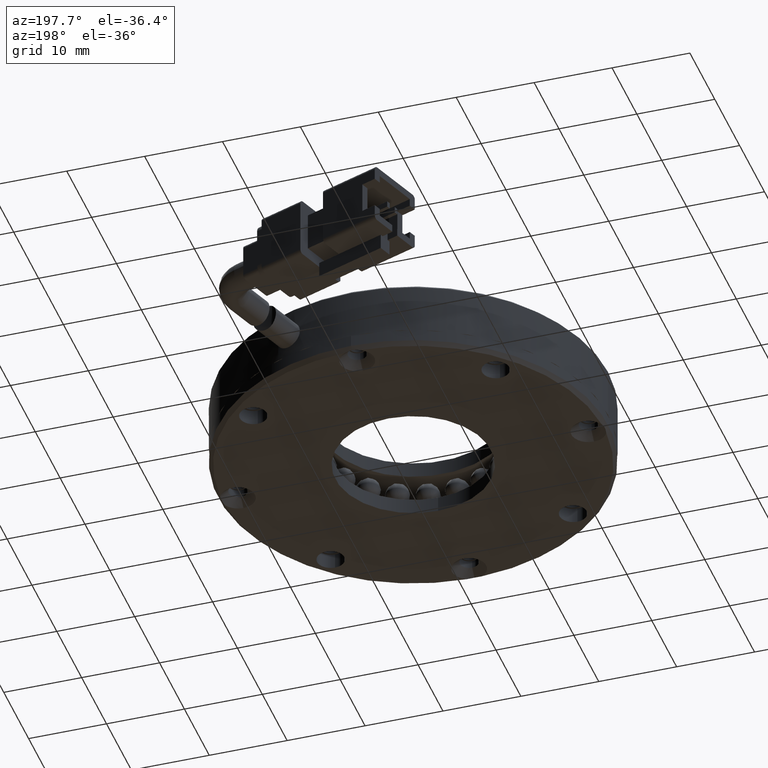
[diagram: clean part render]
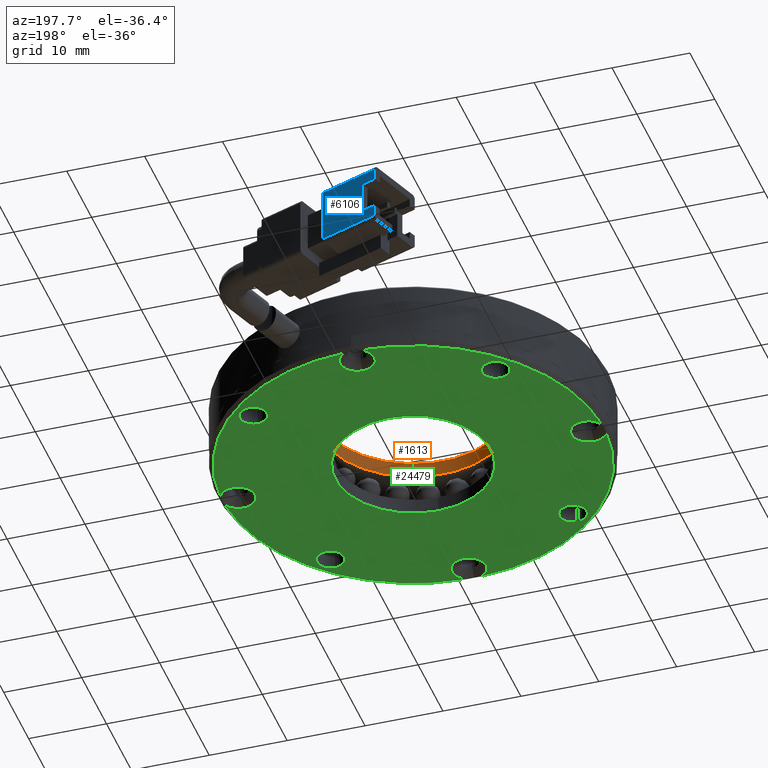
[diagram: same view with three faces highlighted in distinct colors, each labeled with its STEP entity id]
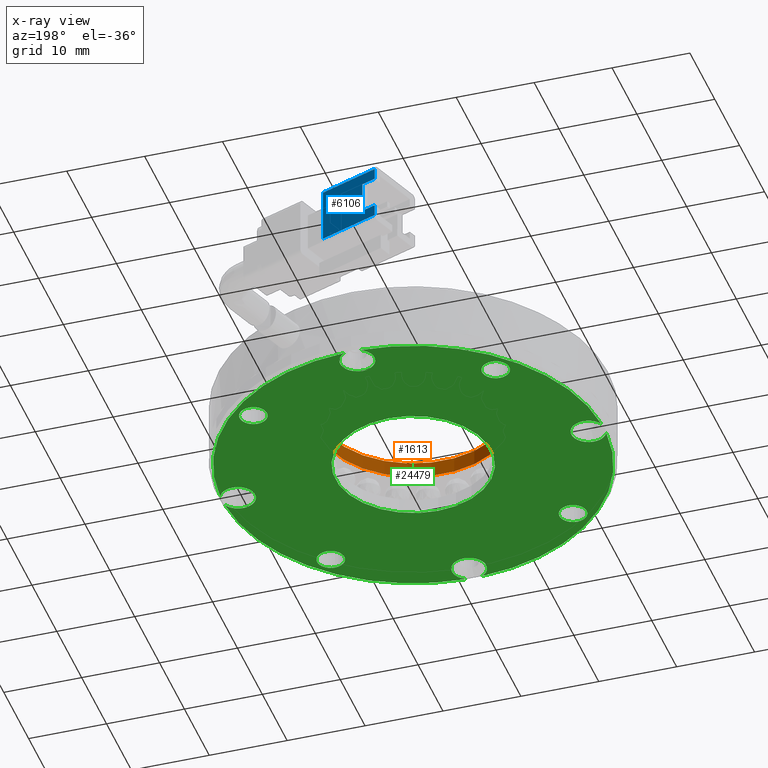
[diagram: x-ray of the same camera — body ghosted, the three highlighted faces saturated]
A machine part, auxiliary view with three faces highlighted in distinct colors.
The next image is the same camera in x-ray (body ghosted, the three faces saturated) — at least one of them is partly hidden behind the body in this view.
Their STEP definitions:

[orange] entity #1613 — the highlighted cylindrical surface (partial cylindrical patch) has radius 12 mm, axis along (-0, -0, -1).
#1157 = CARTESIAN_POINT ( 'NONE',  ( -133.0083944312393100, 6.460725025466879300, 3.500000000000063100 ) ) ;
#1480 = CARTESIAN_POINT ( 'NONE',  ( -121.0083944312392800, 6.460725025466879300, -56.72319322623545200 ) ) ;
#1613 = ADVANCED_FACE ( 'NONE', ( #24805 ), #12339, .F. ) ;
#4353 = CARTESIAN_POINT ( 'NONE',  ( -121.0083944312392800, 6.460725025466879300, 1.500000000000061300 ) ) ;
#4560 = CARTESIAN_POINT ( 'NONE',  ( -109.0083944312392800, 6.460725025466881100, -56.72319322623545200 ) ) ;
#5575 = EDGE_LOOP ( 'NONE', ( #14041, #20303, #14171, #24321 ) ) ;
#6343 = DIRECTION ( 'NONE',  ( -1.000000000000000000, 0.0000000000000000000, 0.0000000000000000000 ) ) ;
#6349 = EDGE_CURVE ( 'NONE', #25215, #21976, #8812, .T. ) ;
#8645 = DIRECTION ( 'NONE',  ( 0.0000000000000000000, 0.0000000000000000000, 1.000000000000000000 ) ) ;
#8812 = CIRCLE ( 'NONE', #24765, 12.00000000000001100 ) ;
#9398 = AXIS2_PLACEMENT_3D ( 'NONE', #4353, #18249, #6343 ) ;
#10208 = LINE ( 'NONE', #19374, #25449 ) ;
#11106 = AXIS2_PLACEMENT_3D ( 'NONE', #1480, #13476, #25509 ) ;
#11929 = LINE ( 'NONE', #4560, #19073 ) ;
#12339 = CYLINDRICAL_SURFACE ( 'NONE', #11106, 12.00000000000001100 ) ;
#13296 = CARTESIAN_POINT ( 'NONE',  ( -109.0083944312392800, 6.460725025466881100, 1.500000000000061300 ) ) ;
#13476 = DIRECTION ( 'NONE',  ( -0.0000000000000000000, -0.0000000000000000000, -1.000000000000000000 ) ) ;
#13872 = EDGE_CURVE ( 'NONE', #25215, #15440, #10208, .T. ) ;
#14041 = ORIENTED_EDGE ( 'NONE', *, *, #6349, .T. ) ;
#14171 = ORIENTED_EDGE ( 'NONE', *, *, #18182, .F. ) ;
#14516 = VERTEX_POINT ( 'NONE', #13296 ) ;
#15440 = VERTEX_POINT ( 'NONE', #25597 ) ;
#15568 = CIRCLE ( 'NONE', #9398, 12.00000000000001100 ) ;
#18182 = EDGE_CURVE ( 'NONE', #15440, #14516, #15568, .T. ) ;
#18249 = DIRECTION ( 'NONE',  ( 0.0000000000000000000, 0.0000000000000000000, 1.000000000000000000 ) ) ;
#19073 = VECTOR ( 'NONE', #24368, 1000.000000000000000 ) ;
#19374 = CARTESIAN_POINT ( 'NONE',  ( -133.0083944312393100, 6.460725025466879300, -56.72319322623545200 ) ) ;
#20303 = ORIENTED_EDGE ( 'NONE', *, *, #25693, .T. ) ;
#20573 = CARTESIAN_POINT ( 'NONE',  ( -121.0083944312392800, 6.460725025466879300, 3.500000000000063100 ) ) ;
#21623 = CARTESIAN_POINT ( 'NONE',  ( -109.0083944312392800, 6.460725025466881100, 3.500000000000063100 ) ) ;
#21976 = VERTEX_POINT ( 'NONE', #21623 ) ;
#22598 = DIRECTION ( 'NONE',  ( -1.000000000000000000, 0.0000000000000000000, 0.0000000000000000000 ) ) ;
#23124 = DIRECTION ( 'NONE',  ( -0.0000000000000000000, -0.0000000000000000000, -1.000000000000000000 ) ) ;
#24321 = ORIENTED_EDGE ( 'NONE', *, *, #13872, .F. ) ;
#24368 = DIRECTION ( 'NONE',  ( -0.0000000000000000000, -0.0000000000000000000, -1.000000000000000000 ) ) ;
#24765 = AXIS2_PLACEMENT_3D ( 'NONE', #20573, #8645, #22598 ) ;
#24805 = FACE_OUTER_BOUND ( 'NONE', #5575, .T. ) ;
#25215 = VERTEX_POINT ( 'NONE', #1157 ) ;
#25449 = VECTOR ( 'NONE', #23124, 1000.000000000000000 ) ;
#25509 = DIRECTION ( 'NONE',  ( -1.000000000000000000, 0.0000000000000000000, 0.0000000000000000000 ) ) ;
#25597 = CARTESIAN_POINT ( 'NONE',  ( -133.0083944312393100, 6.460725025466879300, 1.500000000000061300 ) ) ;
#25693 = EDGE_CURVE ( 'NONE', #21976, #14516, #11929, .T. ) ;

[blue] entity #6106 — the highlighted planar face has unit normal (-0.342, -0.9397, 0).
#195 = LINE ( 'NONE', #15658, #25436 ) ;
#455 = LINE ( 'NONE', #1461, #10446 ) ;
#683 = EDGE_CURVE ( 'NONE', #3971, #8037, #11608, .T. ) ;
#1387 = VECTOR ( 'NONE', #12892, 999.9999999999998900 ) ;
#1461 = CARTESIAN_POINT ( 'NONE',  ( -131.5561219847171800, 54.96189835004862800, -3.999999999999916100 ) ) ;
#1555 = EDGE_CURVE ( 'NONE', #8037, #18004, #195, .T. ) ;
#2028 = CARTESIAN_POINT ( 'NONE',  ( -131.5561219847171800, 54.96189835004862800, -2.499999999999922300 ) ) ;
#3065 = VERTEX_POINT ( 'NONE', #13480 ) ;
#3196 = CARTESIAN_POINT ( 'NONE',  ( -131.5561219847171800, 54.96189835004862800, -3.999999999999916100 ) ) ;
#3382 = ORIENTED_EDGE ( 'NONE', *, *, #20912, .F. ) ;
#3692 = CARTESIAN_POINT ( 'NONE',  ( -131.5561219847171800, 54.96189835004862800, -3.999999999999916100 ) ) ;
#3971 = VERTEX_POINT ( 'NONE', #24943 ) ;
#5095 = CARTESIAN_POINT ( 'NONE',  ( -131.5561219847171800, 54.96189835004862800, -3.999999999999916100 ) ) ;
#5497 = DIRECTION ( 'NONE',  ( 2.333578247978733300E-016, -2.116735384756109300E-018, 1.000000000000000000 ) ) ;
#5588 = CARTESIAN_POINT ( 'NONE',  ( -131.5561219847171800, 54.96189835004862800, 1.500000000000083500 ) ) ;
#5719 = DIRECTION ( 'NONE',  ( -1.566359828355322200E-016, -1.057463294585659500E-016, -1.000000000000000000 ) ) ;
#5880 = EDGE_LOOP ( 'NONE', ( #17138, #18101, #8187, #19027, #3382, #25486, #10418, #7357 ) ) ;
#6106 = ADVANCED_FACE ( 'NONE', ( #20405 ), #11511, .F. ) ;
#6341 = VECTOR ( 'NONE', #8044, 999.9999999999998900 ) ;
#6834 = CARTESIAN_POINT ( 'NONE',  ( -129.7531995496019600, 54.30568824897596200, 1.500000000000083000 ) ) ;
#7069 = EDGE_CURVE ( 'NONE', #12733, #15643, #9530, .T. ) ;
#7181 = EDGE_CURVE ( 'NONE', #20877, #3971, #19807, .T. ) ;
#7357 = ORIENTED_EDGE ( 'NONE', *, *, #1555, .F. ) ;
#8037 = VERTEX_POINT ( 'NONE', #12230 ) ;
#8044 = DIRECTION ( 'NONE',  ( -0.9396926207859083200, 0.3420201433256692700, 1.110223024625156500E-016 ) ) ;
#8187 = ORIENTED_EDGE ( 'NONE', *, *, #15898, .F. ) ;
#8548 = LINE ( 'NONE', #5095, #23809 ) ;
#8896 = VECTOR ( 'NONE', #23395, 1000.000000000000000 ) ;
#9530 = LINE ( 'NONE', #25393, #8896 ) ;
#9553 = DIRECTION ( 'NONE',  ( 0.9396926207859083200, -0.3420201433256692700, -1.110223024625156500E-016 ) ) ;
#9726 = CARTESIAN_POINT ( 'NONE',  ( -129.7531995496019900, 54.30568824897596200, -3.999999999999917000 ) ) ;
#10418 = ORIENTED_EDGE ( 'NONE', *, *, #25203, .F. ) ;
#10446 = VECTOR ( 'NONE', #5497, 1000.000000000000000 ) ;
#10453 = CARTESIAN_POINT ( 'NONE',  ( -124.0385810184299200, 52.22573720344327300, 3.000000000000072800 ) ) ;
#10904 = CARTESIAN_POINT ( 'NONE',  ( -131.5561219847171800, 54.96189835004864900, 3.000000000000065300 ) ) ;
#11511 = PLANE ( 'NONE',  #20439 ) ;
#11608 = LINE ( 'NONE', #2028, #6341 ) ;
#12151 = CARTESIAN_POINT ( 'NONE',  ( -131.5561219847171800, 54.96189835004862100, 1.500000000000082600 ) ) ;
#12230 = CARTESIAN_POINT ( 'NONE',  ( -131.5561219847171800, 54.96189835004862800, -2.499999999999922300 ) ) ;
#12375 = LINE ( 'NONE', #5588, #15157 ) ;
#12733 = VERTEX_POINT ( 'NONE', #17503 ) ;
#12892 = DIRECTION ( 'NONE',  ( -0.9396926207859083200, 0.3420201433256692700, 2.200085921048892400E-016 ) ) ;
#13480 = CARTESIAN_POINT ( 'NONE',  ( -131.5561219847171800, 54.96189835004863500, 3.000000000000074600 ) ) ;
#14490 = VECTOR ( 'NONE', #21672, 1000.000000000000000 ) ;
#14694 = VERTEX_POINT ( 'NONE', #12151 ) ;
#14962 = DIRECTION ( 'NONE',  ( 0.9396926207859083200, -0.3420201433256692700, -1.110223024625156500E-016 ) ) ;
#15157 = VECTOR ( 'NONE', #9553, 999.9999999999998900 ) ;
#15643 = VERTEX_POINT ( 'NONE', #10453 ) ;
#15658 = CARTESIAN_POINT ( 'NONE',  ( -131.5561219847171800, 54.96189835004862800, -3.999999999999916100 ) ) ;
#15898 = EDGE_CURVE ( 'NONE', #14694, #20877, #12375, .T. ) ;
#16416 = EDGE_CURVE ( 'NONE', #14694, #3065, #455, .T. ) ;
#17138 = ORIENTED_EDGE ( 'NONE', *, *, #683, .F. ) ;
#17252 = LINE ( 'NONE', #10904, #1387 ) ;
#17503 = CARTESIAN_POINT ( 'NONE',  ( -124.0385810184299100, 52.22573720344327300, -3.999999999999917800 ) ) ;
#17602 = DIRECTION ( 'NONE',  ( -0.3420201433256692700, -0.9396926207859083200, 1.529417067667757400E-016 ) ) ;
#18004 = VERTEX_POINT ( 'NONE', #3196 ) ;
#18101 = ORIENTED_EDGE ( 'NONE', *, *, #7181, .F. ) ;
#19027 = ORIENTED_EDGE ( 'NONE', *, *, #16416, .T. ) ;
#19807 = LINE ( 'NONE', #9726, #14490 ) ;
#20405 = FACE_OUTER_BOUND ( 'NONE', #5880, .T. ) ;
#20439 = AXIS2_PLACEMENT_3D ( 'NONE', #3692, #17602, #5719 ) ;
#20877 = VERTEX_POINT ( 'NONE', #6834 ) ;
#20912 = EDGE_CURVE ( 'NONE', #15643, #3065, #17252, .T. ) ;
#21672 = DIRECTION ( 'NONE',  ( -1.566359828355322200E-016, -1.057463294585659500E-016, -1.000000000000000000 ) ) ;
#23395 = DIRECTION ( 'NONE',  ( 2.333578247978733300E-016, -2.116735384756109300E-018, 1.000000000000000000 ) ) ;
#23411 = DIRECTION ( 'NONE',  ( -1.566359828355322200E-016, -1.057463294585659500E-016, -1.000000000000000000 ) ) ;
#23809 = VECTOR ( 'NONE', #14962, 999.9999999999998900 ) ;
#24943 = CARTESIAN_POINT ( 'NONE',  ( -129.7531995496019900, 54.30568824897596200, -2.499999999999921400 ) ) ;
#25203 = EDGE_CURVE ( 'NONE', #18004, #12733, #8548, .T. ) ;
#25393 = CARTESIAN_POINT ( 'NONE',  ( -124.0385810184299100, 52.22573720344325900, -3.999999999999934300 ) ) ;
#25436 = VECTOR ( 'NONE', #23411, 1000.000000000000000 ) ;
#25486 = ORIENTED_EDGE ( 'NONE', *, *, #7069, .F. ) ;

[green] entity #24479 — the highlighted planar face has unit normal (-0, -0, -1).
#89 = EDGE_LOOP ( 'NONE', ( #14584, #22411 ) ) ;
#153 = AXIS2_PLACEMENT_3D ( 'NONE', #4779, #18671, #6770 ) ;
#306 = CIRCLE ( 'NONE', #19694, 2.200000000016189000 ) ;
#357 = ORIENTED_EDGE ( 'NONE', *, *, #1727, .T. ) ;
#451 = CARTESIAN_POINT ( 'NONE',  ( -105.4520452451353800, 22.01707421156880100, -5.499999999999942300 ) ) ;
#476 = DIRECTION ( 'NONE',  ( 0.0000000000000000000, 1.000000000000000000, 0.0000000000000000000 ) ) ;
#502 = DIRECTION ( 'NONE',  ( 0.0000000000000000000, -1.000000000000000000, 0.0000000000000000000 ) ) ;
#611 = CARTESIAN_POINT ( 'NONE',  ( -145.4897277645734200, 5.504525139319636800, -5.500000000003591800 ) ) ;
#814 = CIRCLE ( 'NONE', #9850, 1.749999999999994700 ) ;
#857 = DIRECTION ( 'NONE',  ( 0.0000000000000000000, 1.000000000000000000, 0.0000000000000000000 ) ) ;
#961 = VERTEX_POINT ( 'NONE', #4348 ) ;
#980 = CARTESIAN_POINT ( 'NONE',  ( -121.0083944312394000, -3.539274974535270500, -5.499999999999940500 ) ) ;
#986 = CARTESIAN_POINT ( 'NONE',  ( -145.4897277645734200, 7.416924911609513900, -5.500000000003594500 ) ) ;
#1176 = CARTESIAN_POINT ( 'NONE',  ( -121.0083944312394800, 28.96072502546472200, -5.500000000009490200 ) ) ;
#1281 = CARTESIAN_POINT ( 'NONE',  ( -121.0083944312394000, 6.460725025464729900, -5.499999999999940500 ) ) ;
#1296 = VERTEX_POINT ( 'NONE', #19732 ) ;
#1361 = DIRECTION ( 'NONE',  ( -1.278084676573917700E-047, 1.000000000000000000, 1.633500440493055000E-094 ) ) ;
#1411 = CARTESIAN_POINT ( 'NONE',  ( -121.0083944312391500, -16.03927497453527100, -5.500000000066333600 ) ) ;
#1727 = EDGE_CURVE ( 'NONE', #18316, #961, #19827, .T. ) ;
#1728 = EDGE_CURVE ( 'NONE', #7697, #23465, #4587, .T. ) ;
#1831 = DIRECTION ( 'NONE',  ( 1.278084676573917400E-047, -0.0000000000000000000, 1.000000000000000000 ) ) ;
#1919 = CARTESIAN_POINT ( 'NONE',  ( -121.0083944312394000, 6.460725025464729900, -5.499999999999940500 ) ) ;
#2195 = EDGE_CURVE ( 'NONE', #1296, #24520, #6107, .T. ) ;
#2442 = DIRECTION ( 'NONE',  ( 1.278084676573917400E-047, -0.0000000000000000000, 1.000000000000000000 ) ) ;
#2467 = DIRECTION ( 'NONE',  ( 0.0000000000000000000, 1.000000000000000000, 0.0000000000000000000 ) ) ;
#2523 = CIRCLE ( 'NONE', #20201, 2.199999999938889900 ) ;
#2755 = CIRCLE ( 'NONE', #24262, 2.199999999979808300 ) ;
#2846 = EDGE_CURVE ( 'NONE', #17264, #15101, #21369, .T. ) ;
#2960 = ORIENTED_EDGE ( 'NONE', *, *, #16846, .T. ) ;
#2964 = CIRCLE ( 'NONE', #6216, 24.49999999999999300 ) ;
#3000 = AXIS2_PLACEMENT_3D ( 'NONE', #15495, #15299, #15214 ) ;
#3017 = EDGE_CURVE ( 'NONE', #3316, #5191, #3261, .T. ) ;
#3157 = DIRECTION ( 'NONE',  ( -6.308085367363610600E-015, 1.000000000000000000, 0.0000000000000000000 ) ) ;
#3261 = CIRCLE ( 'NONE', #3000, 2.200000000016189000 ) ;
#3269 = CARTESIAN_POINT ( 'NONE',  ( -105.4520452451351500, -7.345624160639128600, -5.499999999999942300 ) ) ;
#3306 = CIRCLE ( 'NONE', #25010, 2.200000000016348400 ) ;
#3316 = VERTEX_POINT ( 'NONE', #24189 ) ;
#3406 = DIRECTION ( 'NONE',  ( 0.0000000000000000000, 1.000000000000000000, 0.0000000000000000000 ) ) ;
#3450 = CARTESIAN_POINT ( 'NONE',  ( -105.4520452451353800, 20.26707421156880800, -5.499999999999942300 ) ) ;
#3460 = CARTESIAN_POINT ( 'NONE',  ( -136.5647436173433100, -7.345624160639461700, -5.499999999999942300 ) ) ;
#3621 = DIRECTION ( 'NONE',  ( -1.278084676573917400E-047, -0.0000000000000000000, -1.000000000000000000 ) ) ;
#3960 = VERTEX_POINT ( 'NONE', #8930 ) ;
#3979 = FACE_BOUND ( 'NONE', #17879, .T. ) ;
#4119 = DIRECTION ( 'NONE',  ( 1.278084676573917400E-047, -0.0000000000000000000, 1.000000000000000000 ) ) ;
#4337 = DIRECTION ( 'NONE',  ( -1.278084676573917400E-047, -0.0000000000000000000, -1.000000000000000000 ) ) ;
#4348 = CARTESIAN_POINT ( 'NONE',  ( -136.5647436173435400, 23.76707421156868700, -5.499999999999942300 ) ) ;
#4506 = EDGE_CURVE ( 'NONE', #5220, #6843, #11909, .T. ) ;
#4587 = CIRCLE ( 'NONE', #20484, 1.749999999999992900 ) ;
#4613 = DIRECTION ( 'NONE',  ( 1.278084676573917400E-047, -0.0000000000000000000, 1.000000000000000000 ) ) ;
#4701 = EDGE_CURVE ( 'NONE', #9667, #11033, #10634, .T. ) ;
#4728 = EDGE_CURVE ( 'NONE', #23790, #9667, #8135, .T. ) ;
#4779 = CARTESIAN_POINT ( 'NONE',  ( -143.5083944312394000, 6.460725025464570100, -5.500000000009490200 ) ) ;
#4881 = EDGE_CURVE ( 'NONE', #9899, #3960, #2523, .T. ) ;
#5023 = EDGE_CURVE ( 'NONE', #5191, #5220, #306, .T. ) ;
#5163 = CIRCLE ( 'NONE', #13932, 2.199999999979808300 ) ;
#5168 = ORIENTED_EDGE ( 'NONE', *, *, #2846, .T. ) ;
#5191 = VERTEX_POINT ( 'NONE', #14133 ) ;
#5220 = VERTEX_POINT ( 'NONE', #20253 ) ;
#5396 = AXIS2_PLACEMENT_3D ( 'NONE', #8767, #22716, #10760 ) ;
#5829 = CARTESIAN_POINT ( 'NONE',  ( -121.0083944312394000, 6.460725025464729900, -5.499999999999936900 ) ) ;
#6107 = CIRCLE ( 'NONE', #25151, 1.749999999999994700 ) ;
#6216 = AXIS2_PLACEMENT_3D ( 'NONE', #5829, #19729, #7822 ) ;
#6462 = CIRCLE ( 'NONE', #7331, 10.00000000000000000 ) ;
#6473 = ORIENTED_EDGE ( 'NONE', *, *, #10129, .T. ) ;
#6551 = CARTESIAN_POINT ( 'NONE',  ( -96.52706109790560200, 7.416924911610252900, -5.500000000003801400 ) ) ;
#6770 = DIRECTION ( 'NONE',  ( 0.0000000000000000000, 1.000000000000000000, 0.0000000000000000000 ) ) ;
#6843 = VERTEX_POINT ( 'NONE', #14525 ) ;
#7042 = CARTESIAN_POINT ( 'NONE',  ( -136.5647436173435400, 22.01707421156869400, -5.499999999999942300 ) ) ;
#7331 = AXIS2_PLACEMENT_3D ( 'NONE', #11572, #25516, #13584 ) ;
#7531 = ORIENTED_EDGE ( 'NONE', *, *, #18718, .T. ) ;
#7540 = CARTESIAN_POINT ( 'NONE',  ( -121.0083944312394000, 16.46072502546472900, -5.499999999999940500 ) ) ;
#7697 = VERTEX_POINT ( 'NONE', #3269 ) ;
#7733 = DIRECTION ( 'NONE',  ( 1.278084676573917400E-047, -0.0000000000000000000, 1.000000000000000000 ) ) ;
#7822 = DIRECTION ( 'NONE',  ( 1.132880637372609100E-015, -1.000000000000000000, 0.0000000000000000000 ) ) ;
#8041 = EDGE_CURVE ( 'NONE', #20204, #15672, #19394, .T. ) ;
#8135 = CIRCLE ( 'NONE', #153, 2.200000000016348400 ) ;
#8498 = EDGE_CURVE ( 'NONE', #15672, #3316, #24962, .T. ) ;
#8626 = VERTEX_POINT ( 'NONE', #611 ) ;
#8767 = CARTESIAN_POINT ( 'NONE',  ( -136.5647436173433100, -9.095624160639456300, -5.499999999999942300 ) ) ;
#8816 = EDGE_LOOP ( 'NONE', ( #14263, #22085 ) ) ;
#8930 = CARTESIAN_POINT ( 'NONE',  ( -121.0083944312394800, 26.76072502552582900, -5.500000000009490200 ) ) ;
#9011 = DIRECTION ( 'NONE',  ( 0.0000000000000000000, 1.000000000000000000, 0.0000000000000000000 ) ) ;
#9253 = FACE_BOUND ( 'NONE', #18408, .T. ) ;
#9279 = PLANE ( 'NONE',  #24932 ) ;
#9356 = ORIENTED_EDGE ( 'NONE', *, *, #20376, .T. ) ;
#9667 = VERTEX_POINT ( 'NONE', #24724 ) ;
#9850 = AXIS2_PLACEMENT_3D ( 'NONE', #7042, #20964, #9011 ) ;
#9899 = VERTEX_POINT ( 'NONE', #25838 ) ;
#9924 = ORIENTED_EDGE ( 'NONE', *, *, #14266, .T. ) ;
#10129 = EDGE_CURVE ( 'NONE', #15101, #17264, #6462, .T. ) ;
#10406 = EDGE_CURVE ( 'NONE', #8626, #23790, #3306, .T. ) ;
#10502 = EDGE_CURVE ( 'NONE', #961, #18316, #814, .T. ) ;
#10634 = CIRCLE ( 'NONE', #15327, 2.200000000016348400 ) ;
#10670 = EDGE_CURVE ( 'NONE', #21979, #8626, #2964, .T. ) ;
#10760 = DIRECTION ( 'NONE',  ( 0.0000000000000000000, 1.000000000000000000, 0.0000000000000000000 ) ) ;
#10846 = DIRECTION ( 'NONE',  ( 1.278084676573917400E-047, -0.0000000000000000000, 1.000000000000000000 ) ) ;
#11005 = CARTESIAN_POINT ( 'NONE',  ( -105.4520452451351500, -9.095624160639122400, -5.499999999999942300 ) ) ;
#11033 = VERTEX_POINT ( 'NONE', #986 ) ;
#11180 = AXIS2_PLACEMENT_3D ( 'NONE', #15545, #3621, #17527 ) ;
#11285 = AXIS2_PLACEMENT_3D ( 'NONE', #16240, #4337, #18237 ) ;
#11572 = CARTESIAN_POINT ( 'NONE',  ( -121.0083944312394000, 6.460725025464729900, -5.499999999999940500 ) ) ;
#11618 = ORIENTED_EDGE ( 'NONE', *, *, #10670, .T. ) ;
#11693 = AXIS2_PLACEMENT_3D ( 'NONE', #11005, #24939, #13010 ) ;
#11811 = DIRECTION ( 'NONE',  ( -1.278084676573917400E-047, -0.0000000000000000000, -1.000000000000000000 ) ) ;
#11904 = EDGE_CURVE ( 'NONE', #16955, #15892, #23401, .T. ) ;
#11909 = CIRCLE ( 'NONE', #24343, 24.49999999999999300 ) ;
#11918 = DIRECTION ( 'NONE',  ( 0.0000000000000000000, 1.000000000000000000, 0.0000000000000000000 ) ) ;
#11935 = CIRCLE ( 'NONE', #11180, 24.49999999999999300 ) ;
#11949 = ORIENTED_EDGE ( 'NONE', *, *, #10406, .T. ) ;
#11958 = CARTESIAN_POINT ( 'NONE',  ( -136.5647436173433100, -10.84562416063945100, -5.499999999999942300 ) ) ;
#11998 = EDGE_LOOP ( 'NONE', ( #15287, #357 ) ) ;
#12000 = DIRECTION ( 'NONE',  ( 1.278084676573917400E-047, -0.0000000000000000000, 1.000000000000000000 ) ) ;
#12076 = VERTEX_POINT ( 'NONE', #21386 ) ;
#12272 = EDGE_LOOP ( 'NONE', ( #14233, #22057, #24540, #22383, #19567, #22705, #9924, #11618, #11949, #15055, #17560, #2960, #22155, #9356 ) ) ;
#12409 = DIRECTION ( 'NONE',  ( 1.278084676573917400E-047, -0.0000000000000000000, 1.000000000000000000 ) ) ;
#12480 = ORIENTED_EDGE ( 'NONE', *, *, #2195, .T. ) ;
#12550 = EDGE_CURVE ( 'NONE', #6843, #12076, #2755, .T. ) ;
#12680 = CARTESIAN_POINT ( 'NONE',  ( -136.5647436173435400, 20.26707421156870100, -5.499999999999942300 ) ) ;
#12772 = DIRECTION ( 'NONE',  ( 1.278084676573917400E-047, -0.0000000000000000000, 1.000000000000000000 ) ) ;
#13010 = DIRECTION ( 'NONE',  ( 0.0000000000000000000, 1.000000000000000000, 0.0000000000000000000 ) ) ;
#13051 = CARTESIAN_POINT ( 'NONE',  ( -105.4520452451351500, -9.095624160639122400, -5.499999999999942300 ) ) ;
#13285 = DIRECTION ( 'NONE',  ( -1.278084676573917700E-047, -7.983674700015282600E-110, -1.000000000000000000 ) ) ;
#13576 = DIRECTION ( 'NONE',  ( 0.0000000000000000000, 1.000000000000000000, 0.0000000000000000000 ) ) ;
#13584 = DIRECTION ( 'NONE',  ( 0.0000000000000000000, -1.000000000000000000, 0.0000000000000000000 ) ) ;
#13660 = DIRECTION ( 'NONE',  ( 1.278084676573917400E-047, -0.0000000000000000000, 1.000000000000000000 ) ) ;
#13735 = CARTESIAN_POINT ( 'NONE',  ( -136.5647436173435400, 22.01707421156869400, -5.499999999999942300 ) ) ;
#13927 = FACE_BOUND ( 'NONE', #89, .T. ) ;
#13932 = AXIS2_PLACEMENT_3D ( 'NONE', #14352, #2442, #16378 ) ;
#14114 = CIRCLE ( 'NONE', #11693, 1.749999999999992900 ) ;
#14133 = CARTESIAN_POINT ( 'NONE',  ( -98.50839443123941000, 4.260725025448540900, -5.500000000009490200 ) ) ;
#14233 = ORIENTED_EDGE ( 'NONE', *, *, #8041, .T. ) ;
#14263 = ORIENTED_EDGE ( 'NONE', *, *, #23762, .T. ) ;
#14266 = EDGE_CURVE ( 'NONE', #12076, #21979, #5163, .T. ) ;
#14352 = CARTESIAN_POINT ( 'NONE',  ( -121.0083944312391500, -16.03927497453527100, -5.500000000066333600 ) ) ;
#14356 = AXIS2_PLACEMENT_3D ( 'NONE', #24330, #12409, #476 ) ;
#14376 = DIRECTION ( 'NONE',  ( 1.278084676573917400E-047, -0.0000000000000000000, 1.000000000000000000 ) ) ;
#14401 = CARTESIAN_POINT ( 'NONE',  ( -143.5083944312394000, 4.260725025448221200, -5.500000000009490200 ) ) ;
#14524 = CIRCLE ( 'NONE', #19240, 2.199999999938889900 ) ;
#14525 = CARTESIAN_POINT ( 'NONE',  ( -120.0521945451498200, -18.02060830784896300, -5.500000000056997100 ) ) ;
#14551 = FACE_OUTER_BOUND ( 'NONE', #12272, .T. ) ;
#14584 = ORIENTED_EDGE ( 'NONE', *, *, #1728, .T. ) ;
#15055 = ORIENTED_EDGE ( 'NONE', *, *, #4728, .T. ) ;
#15075 = DIRECTION ( 'NONE',  ( 1.278084676573917400E-047, -0.0000000000000000000, 1.000000000000000000 ) ) ;
#15101 = VERTEX_POINT ( 'NONE', #7540 ) ;
#15214 = DIRECTION ( 'NONE',  ( 0.0000000000000000000, 1.000000000000000000, 0.0000000000000000000 ) ) ;
#15287 = ORIENTED_EDGE ( 'NONE', *, *, #10502, .T. ) ;
#15299 = DIRECTION ( 'NONE',  ( 1.278084676573917400E-047, -0.0000000000000000000, 1.000000000000000000 ) ) ;
#15319 = DIRECTION ( 'NONE',  ( 1.278084676573917400E-047, -0.0000000000000000000, 1.000000000000000000 ) ) ;
#15327 = AXIS2_PLACEMENT_3D ( 'NONE', #16505, #4613, #18488 ) ;
#15495 = CARTESIAN_POINT ( 'NONE',  ( -98.50839443123941000, 6.460725025464729900, -5.500000000009490200 ) ) ;
#15545 = CARTESIAN_POINT ( 'NONE',  ( -121.0083944312394000, 6.460725025464729900, -5.499999999999936900 ) ) ;
#15672 = VERTEX_POINT ( 'NONE', #6551 ) ;
#15892 = VERTEX_POINT ( 'NONE', #3460 ) ;
#16029 = CARTESIAN_POINT ( 'NONE',  ( -98.50839443123941000, 6.460725025464729900, -5.500000000009490200 ) ) ;
#16240 = CARTESIAN_POINT ( 'NONE',  ( -121.0083944312394000, 6.460725025464729900, -5.499999999999940500 ) ) ;
#16378 = DIRECTION ( 'NONE',  ( 0.0000000000000000000, 1.000000000000000000, 0.0000000000000000000 ) ) ;
#16505 = CARTESIAN_POINT ( 'NONE',  ( -143.5083944312394000, 6.460725025464570100, -5.500000000009490200 ) ) ;
#16752 = EDGE_CURVE ( 'NONE', #23465, #7697, #14114, .T. ) ;
#16846 = EDGE_CURVE ( 'NONE', #11033, #9899, #11935, .T. ) ;
#16955 = VERTEX_POINT ( 'NONE', #11958 ) ;
#17264 = VERTEX_POINT ( 'NONE', #980 ) ;
#17312 = AXIS2_PLACEMENT_3D ( 'NONE', #16029, #4119, #18028 ) ;
#17527 = DIRECTION ( 'NONE',  ( 0.0000000000000000000, -1.000000000000000000, 0.0000000000000000000 ) ) ;
#17560 = ORIENTED_EDGE ( 'NONE', *, *, #4701, .T. ) ;
#17879 = EDGE_LOOP ( 'NONE', ( #5168, #6473 ) ) ;
#18028 = DIRECTION ( 'NONE',  ( 6.308085367141970700E-015, 1.000000000000000000, 0.0000000000000000000 ) ) ;
#18237 = DIRECTION ( 'NONE',  ( 0.0000000000000000000, -1.000000000000000000, 0.0000000000000000000 ) ) ;
#18316 = VERTEX_POINT ( 'NONE', #12680 ) ;
#18408 = EDGE_LOOP ( 'NONE', ( #12480, #7531 ) ) ;
#18488 = DIRECTION ( 'NONE',  ( 0.0000000000000000000, 1.000000000000000000, 0.0000000000000000000 ) ) ;
#18671 = DIRECTION ( 'NONE',  ( 1.278084676573917400E-047, -0.0000000000000000000, 1.000000000000000000 ) ) ;
#18718 = EDGE_CURVE ( 'NONE', #24520, #1296, #18731, .T. ) ;
#18731 = CIRCLE ( 'NONE', #24770, 1.749999999999994700 ) ;
#19113 = AXIS2_PLACEMENT_3D ( 'NONE', #13735, #13660, #13576 ) ;
#19215 = FACE_BOUND ( 'NONE', #8816, .T. ) ;
#19240 = AXIS2_PLACEMENT_3D ( 'NONE', #22785, #10846, #24774 ) ;
#19394 = CIRCLE ( 'NONE', #11285, 24.49999999999999300 ) ;
#19567 = ORIENTED_EDGE ( 'NONE', *, *, #4506, .T. ) ;
#19642 = CARTESIAN_POINT ( 'NONE',  ( -98.50839443123941000, 6.460725025464729900, -5.500000000009490200 ) ) ;
#19694 = AXIS2_PLACEMENT_3D ( 'NONE', #19642, #7733, #21663 ) ;
#19729 = DIRECTION ( 'NONE',  ( -1.278084676573917400E-047, -0.0000000000000000000, -1.000000000000000000 ) ) ;
#19732 = CARTESIAN_POINT ( 'NONE',  ( -105.4520452451353800, 23.76707421156879700, -5.499999999999942300 ) ) ;
#19827 = CIRCLE ( 'NONE', #19113, 1.749999999999994700 ) ;
#19974 = DIRECTION ( 'NONE',  ( 0.0000000000000000000, 1.000000000000000000, 0.0000000000000000000 ) ) ;
#20052 = DIRECTION ( 'NONE',  ( 1.278084676573917400E-047, -0.0000000000000000000, 1.000000000000000000 ) ) ;
#20139 = CARTESIAN_POINT ( 'NONE',  ( -105.4520452451353800, 22.01707421156880100, -5.499999999999942300 ) ) ;
#20182 = CARTESIAN_POINT ( 'NONE',  ( -120.0521945452011900, 30.94205835878457100, -5.500000000021927300 ) ) ;
#20201 = AXIS2_PLACEMENT_3D ( 'NONE', #1176, #15075, #3157 ) ;
#20204 = VERTEX_POINT ( 'NONE', #20182 ) ;
#20253 = CARTESIAN_POINT ( 'NONE',  ( -96.52706109790560200, 5.504525139319234500, -5.500000000003801400 ) ) ;
#20376 = EDGE_CURVE ( 'NONE', #3960, #20204, #14524, .T. ) ;
#20484 = AXIS2_PLACEMENT_3D ( 'NONE', #13051, #12000, #11918 ) ;
#20964 = DIRECTION ( 'NONE',  ( 1.278084676573917400E-047, -0.0000000000000000000, 1.000000000000000000 ) ) ;
#21369 = CIRCLE ( 'NONE', #24018, 10.00000000000000000 ) ;
#21386 = CARTESIAN_POINT ( 'NONE',  ( -121.0083944312391500, -13.83927497455546400, -5.500000000066333600 ) ) ;
#21497 = CARTESIAN_POINT ( 'NONE',  ( -105.4520452451351500, -10.84562416063911500, -5.499999999999942300 ) ) ;
#21663 = DIRECTION ( 'NONE',  ( 0.0000000000000000000, 1.000000000000000000, 0.0000000000000000000 ) ) ;
#21979 = VERTEX_POINT ( 'NONE', #23686 ) ;
#22057 = ORIENTED_EDGE ( 'NONE', *, *, #8498, .T. ) ;
#22085 = ORIENTED_EDGE ( 'NONE', *, *, #11904, .T. ) ;
#22155 = ORIENTED_EDGE ( 'NONE', *, *, #4881, .T. ) ;
#22383 = ORIENTED_EDGE ( 'NONE', *, *, #5023, .T. ) ;
#22411 = ORIENTED_EDGE ( 'NONE', *, *, #16752, .T. ) ;
#22705 = ORIENTED_EDGE ( 'NONE', *, *, #12550, .T. ) ;
#22716 = DIRECTION ( 'NONE',  ( 1.278084676573917400E-047, -0.0000000000000000000, 1.000000000000000000 ) ) ;
#22785 = CARTESIAN_POINT ( 'NONE',  ( -121.0083944312394800, 28.96072502546472200, -5.500000000009490200 ) ) ;
#23401 = CIRCLE ( 'NONE', #5396, 1.749999999999994700 ) ;
#23465 = VERTEX_POINT ( 'NONE', #21497 ) ;
#23686 = CARTESIAN_POINT ( 'NONE',  ( -121.9645943173284600, -18.02060830784898800, -5.500000000056998000 ) ) ;
#23731 = CARTESIAN_POINT ( 'NONE',  ( -121.0083944312394000, 6.460725025464729900, -5.499999999999940500 ) ) ;
#23762 = EDGE_CURVE ( 'NONE', #15892, #16955, #24453, .T. ) ;
#23790 = VERTEX_POINT ( 'NONE', #14401 ) ;
#24018 = AXIS2_PLACEMENT_3D ( 'NONE', #1919, #1831, #502 ) ;
#24189 = CARTESIAN_POINT ( 'NONE',  ( -98.50839443123941000, 8.660725025480918000, -5.500000000009490200 ) ) ;
#24262 = AXIS2_PLACEMENT_3D ( 'NONE', #1411, #15319, #3406 ) ;
#24330 = CARTESIAN_POINT ( 'NONE',  ( -136.5647436173433100, -9.095624160639456300, -5.499999999999942300 ) ) ;
#24343 = AXIS2_PLACEMENT_3D ( 'NONE', #23731, #11811, #25738 ) ;
#24453 = CIRCLE ( 'NONE', #14356, 1.749999999999994700 ) ;
#24479 = ADVANCED_FACE ( 'NONE', ( #3979, #14551, #9253, #24535, #19215, #13927 ), #9279, .T. ) ;
#24520 = VERTEX_POINT ( 'NONE', #3450 ) ;
#24535 = FACE_BOUND ( 'NONE', #11998, .T. ) ;
#24540 = ORIENTED_EDGE ( 'NONE', *, *, #3017, .T. ) ;
#24704 = CARTESIAN_POINT ( 'NONE',  ( -143.5083944312394000, 6.460725025464570100, -5.500000000009490200 ) ) ;
#24724 = CARTESIAN_POINT ( 'NONE',  ( -143.5083944312394000, 8.660725025480918000, -5.500000000009490200 ) ) ;
#24770 = AXIS2_PLACEMENT_3D ( 'NONE', #451, #14376, #2467 ) ;
#24774 = DIRECTION ( 'NONE',  ( 0.0000000000000000000, 1.000000000000000000, 0.0000000000000000000 ) ) ;
#24932 = AXIS2_PLACEMENT_3D ( 'NONE', #1281, #13285, #1361 ) ;
#24939 = DIRECTION ( 'NONE',  ( 1.278084676573917400E-047, -0.0000000000000000000, 1.000000000000000000 ) ) ;
#24962 = CIRCLE ( 'NONE', #17312, 2.200000000016189000 ) ;
#25010 = AXIS2_PLACEMENT_3D ( 'NONE', #24704, #12772, #857 ) ;
#25151 = AXIS2_PLACEMENT_3D ( 'NONE', #20139, #20052, #19974 ) ;
#25516 = DIRECTION ( 'NONE',  ( 1.278084676573917400E-047, -0.0000000000000000000, 1.000000000000000000 ) ) ;
#25738 = DIRECTION ( 'NONE',  ( -1.699320956058913600E-015, -1.000000000000000000, 0.0000000000000000000 ) ) ;
#25838 = CARTESIAN_POINT ( 'NONE',  ( -121.9645943172761400, 30.94205835878498300, -5.500000000021581800 ) ) ;